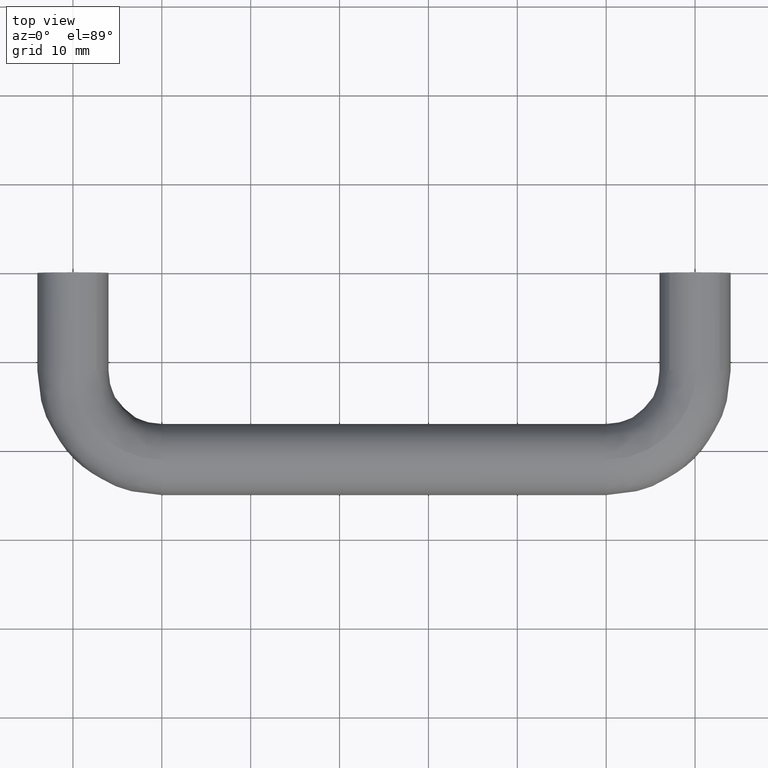
[diagram: clean part render]
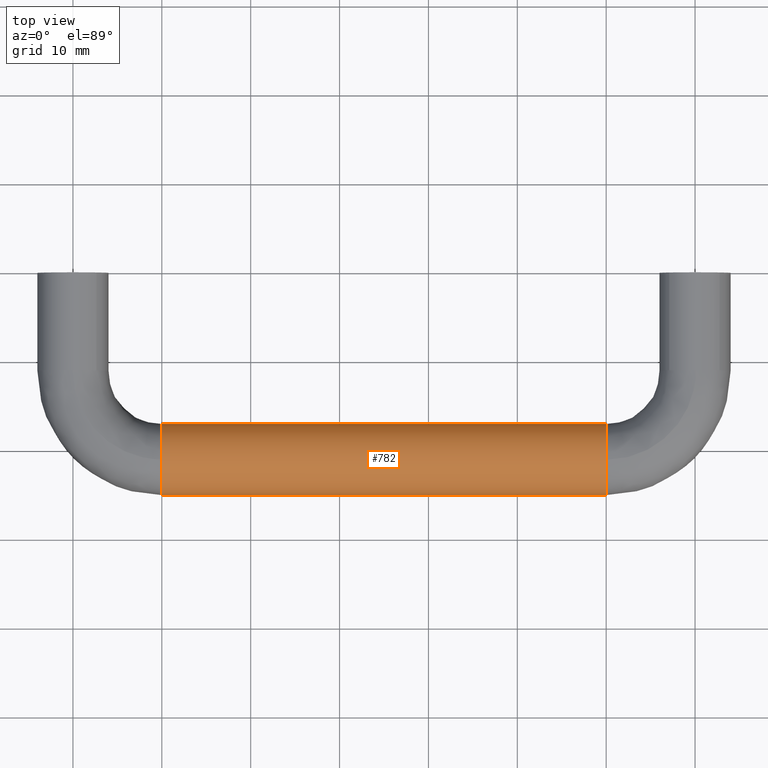
[diagram: same view with one face highlighted and labeled with its STEP entity id]
A machine part, top view. The second image highlights one B-rep face of the part: STEP entity #782.
In plain terms, the highlighted face is a freeform B-spline surface patch.
Its self-contained STEP definition (entity closure, byte-faithful):
#620=CARTESIAN_POINT('',(8.749999999407832,-18.085145242384502,-2.739273944315588));
#621=CARTESIAN_POINT('',(8.749999999407830,-15.498302470239516,0.013379172849753));
#622=CARTESIAN_POINT('',(8.749999999407830,-18.098502515950852,2.753418302775015));
#623=CARTESIAN_POINT('',(8.749999999407830,-20.851920818725869,5.654915786824165));
#624=CARTESIAN_POINT('',(8.749999999407830,-23.753418302775010,2.901497484049150));
#625=CARTESIAN_POINT('',(8.749999999407830,-26.654915786824155,0.148079181274134));
#626=CARTESIAN_POINT('',(8.749999999407830,-23.901497484049148,-2.753418302775015));
#627=CARTESIAN_POINT('',(61.281250000268088,-18.085145242384492,-2.739273944315588));
#628=CARTESIAN_POINT('',(61.281250000268074,-15.498302470239500,0.013379172849753));
#629=CARTESIAN_POINT('',(61.281250000268081,-18.098502515950852,2.753418302775015));
#630=CARTESIAN_POINT('',(61.281250000268081,-20.851920818725855,5.654915786824165));
#631=CARTESIAN_POINT('',(61.281250000268081,-23.753418302775010,2.901497484049150));
#632=CARTESIAN_POINT('',(61.281250000268081,-26.654915786824155,0.148079181274134));
#633=CARTESIAN_POINT('',(61.281250000268081,-23.901497484049141,-2.753418302775015));
#641=(BOUNDED_SURFACE()B_SPLINE_SURFACE(2,1,((#620,#627),(#621,#628),(#622,#629),(#623,#630),(#624,#631),(#625,#632),(#626,#633)),.UNSPECIFIED.,.F.,.F.,.U.)B_SPLINE_SURFACE_WITH_KNOTS((3,2,2,3),(2,2),(0.0,6.362320318050738,12.989737316020260,19.617154313989779),(0.0,52.531250000860247),.UNSPECIFIED.)GEOMETRIC_REPRESENTATION_ITEM()RATIONAL_B_SPLINE_SURFACE(((0.977505800795127,0.977505800795127),(0.718822509939086,0.718822509939086),(1.0,1.0),(0.707106781186548,0.707106781186548),(1.0,1.0),(0.707106781186548,0.707106781186548),(1.0,1.0)))REPRESENTATION_ITEM('')SURFACE());
#642=CARTESIAN_POINT('',(59.999995410626042,-18.085144373023830,-2.739273019229506));
#643=VERTEX_POINT('',#642);
#644=CARTESIAN_POINT('',(60.0,-17.0,0.0));
#645=VERTEX_POINT('',#644);
#646=CARTESIAN_POINT('',(59.999995410626028,-18.085144373023823,-2.739273019229505));
#647=CARTESIAN_POINT('',(59.999998084996584,-17.000000000000025,-1.584572790525597));
#648=CARTESIAN_POINT('',(60.0,-17.0,0.0));
#656=(BOUNDED_CURVE()B_SPLINE_CURVE(2,(#646,#647,#648),.UNSPECIFIED.,.F.,.U.)B_SPLINE_CURVE_WITH_KNOTS((3,3),(0.379684538877428,0.500000000000000),.UNSPECIFIED.)CURVE()GEOMETRIC_REPRESENTATION_ITEM()RATIONAL_B_SPLINE_CURVE((0.853759071032117,0.859041669275140,1.0))REPRESENTATION_ITEM(''));
#657=EDGE_CURVE('',#643,#645,#656,.T.);
#658=ORIENTED_EDGE('',*,*,#657,.F.);
#659=CARTESIAN_POINT('',(10.000003123664021,-18.085144822978489,-2.739273498026444));
#660=VERTEX_POINT('',#659);
#661=CARTESIAN_POINT('',(10.000003123664021,-18.085144822978489,-2.739273498026444));
#662=CARTESIAN_POINT('',(59.999995410626042,-18.085144373023830,-2.739273019229506));
#663=QUASI_UNIFORM_CURVE('',1,(#661,#662),.UNSPECIFIED.,.F.,.U.);
#664=EDGE_CURVE('',#660,#643,#663,.T.);
#665=ORIENTED_EDGE('',*,*,#664,.F.);
#666=CARTESIAN_POINT('',(10.0,-17.0,0.0));
#667=VERTEX_POINT('',#666);
#668=CARTESIAN_POINT('',(10.000003123664017,-18.085144822978492,-2.739273498026444));
#669=CARTESIAN_POINT('',(10.000001319486849,-17.0,-1.584572816330424));
#670=CARTESIAN_POINT('',(10.0,-17.0,0.0));
#678=(BOUNDED_CURVE()B_SPLINE_CURVE(2,(#668,#669,#670),.UNSPECIFIED.,.F.,.U.)B_SPLINE_CURVE_WITH_KNOTS((3,3),(0.379684537194316,0.500000000000000),.UNSPECIFIED.)CURVE()GEOMETRIC_REPRESENTATION_ITEM()RATIONAL_B_SPLINE_CURVE((0.853759070884319,0.859041667303252,1.0))REPRESENTATION_ITEM(''));
#679=EDGE_CURVE('',#660,#667,#678,.T.);
#680=ORIENTED_EDGE('',*,*,#679,.T.);
#681=CARTESIAN_POINT('',(9.999999999428301,-21.050264161945130,3.999684176784955));
#682=VERTEX_POINT('',#681);
#683=CARTESIAN_POINT('',(10.0,-17.0,0.0));
#684=CARTESIAN_POINT('',(10.000000000000002,-17.000000000000004,4.000000000000000));
#685=CARTESIAN_POINT('',(10.0,-21.0,4.0));
#686=CARTESIAN_POINT('',(10.0,-21.025133074379568,4.000000000000000));
#687=CARTESIAN_POINT('',(9.999999999428301,-21.050264161945130,3.999684176784955));
#695=(BOUNDED_CURVE()B_SPLINE_CURVE(2,(#683,#684,#685,#686,#687),.UNSPECIFIED.,.F.,.U.)B_SPLINE_CURVE_WITH_KNOTS((3,2,3),(0.500000000000000,0.750000000000000,0.752215704290359),.UNSPECIFIED.)CURVE()GEOMETRIC_REPRESENTATION_ITEM()RATIONAL_B_SPLINE_CURVE((1.0,0.707106781186548,1.0,0.997404140953831,0.994854295155869))REPRESENTATION_ITEM(''));
#696=EDGE_CURVE('',#667,#682,#695,.T.);
#697=ORIENTED_EDGE('',*,*,#696,.T.);
#698=CARTESIAN_POINT('',(10.0,-25.0,0.0));
#699=VERTEX_POINT('',#698);
#700=CARTESIAN_POINT('',(9.999999999428301,-21.050264161945126,3.999684176784955));
#701=CARTESIAN_POINT('',(9.999999999999998,-24.999999999999993,3.950047714865288));
#702=CARTESIAN_POINT('',(10.0,-25.0,0.0));
#710=(BOUNDED_CURVE()B_SPLINE_CURVE(2,(#700,#701,#702),.UNSPECIFIED.,.F.,.U.)B_SPLINE_CURVE_WITH_KNOTS((3,3),(0.752215704290360,1.0),.UNSPECIFIED.)CURVE()GEOMETRIC_REPRESENTATION_ITEM()RATIONAL_B_SPLINE_CURVE((0.994854295155867,0.709702640232717,1.0))REPRESENTATION_ITEM(''));
#711=EDGE_CURVE('',#682,#699,#710,.T.);
#712=ORIENTED_EDGE('',*,*,#711,.T.);
#713=CARTESIAN_POINT('',(10.000002846891970,-23.901497828615462,-2.753417939677727));
#714=VERTEX_POINT('',#713);
#715=CARTESIAN_POINT('',(10.0,-25.0,0.0));
#716=CARTESIAN_POINT('',(10.000001155614772,-25.0,-1.595837603655317));
#717=CARTESIAN_POINT('',(10.000002846891972,-23.901497828615462,-2.753417939677727));
#725=(BOUNDED_CURVE()B_SPLINE_CURVE(2,(#715,#716,#717),.UNSPECIFIED.,.F.,.U.)B_SPLINE_CURVE_WITH_KNOTS((3,3),(0.0,0.121049488887875),.UNSPECIFIED.)CURVE()GEOMETRIC_REPRESENTATION_ITEM()RATIONAL_B_SPLINE_CURVE((1.0,0.858181702255628,0.853699664166494))REPRESENTATION_ITEM(''));
#726=EDGE_CURVE('',#699,#714,#725,.T.);
#727=ORIENTED_EDGE('',*,*,#726,.T.);
#728=CARTESIAN_POINT('',(59.999995540924871,-23.901497832919951,-2.753417935140964));
#729=VERTEX_POINT('',#728);
#730=CARTESIAN_POINT('',(10.000002846891970,-23.901497828615462,-2.753417939677727));
#731=CARTESIAN_POINT('',(59.999995540924871,-23.901497832919951,-2.753417935140964));
#732=QUASI_UNIFORM_CURVE('',1,(#730,#731),.UNSPECIFIED.,.F.,.U.);
#733=EDGE_CURVE('',#714,#729,#732,.T.);
#734=ORIENTED_EDGE('',*,*,#733,.T.);
#735=CARTESIAN_POINT('',(60.0,-25.0,0.0));
#736=VERTEX_POINT('',#735);
#737=CARTESIAN_POINT('',(60.0,-25.0,0.0));
#738=CARTESIAN_POINT('',(59.999998165934080,-25.000000000000018,-1.595837596406055));
#739=CARTESIAN_POINT('',(59.999995540924878,-23.901497832919951,-2.753417935140964));
#747=(BOUNDED_CURVE()B_SPLINE_CURVE(2,(#737,#738,#739),.UNSPECIFIED.,.F.,.U.)B_SPLINE_CURVE_WITH_KNOTS((3,3),(0.0,0.121049488416020),.UNSPECIFIED.)CURVE()GEOMETRIC_REPRESENTATION_ITEM()RATIONAL_B_SPLINE_CURVE((1.0,0.858181702808441,0.853699664201436))REPRESENTATION_ITEM(''));
#748=EDGE_CURVE('',#736,#729,#747,.T.);
#749=ORIENTED_EDGE('',*,*,#748,.F.);
#750=CARTESIAN_POINT('',(60.000000000247098,-21.100520383177319,3.998736757097906));
#751=VERTEX_POINT('',#750);
#752=CARTESIAN_POINT('',(60.000000000247098,-21.100520383177322,3.998736757097907));
#753=CARTESIAN_POINT('',(59.999999999999986,-24.999999999999989,3.900711501982625));
#754=CARTESIAN_POINT('',(60.0,-25.0,0.0));
#762=(BOUNDED_CURVE()B_SPLINE_CURVE(2,(#752,#753,#754),.UNSPECIFIED.,.F.,.U.)B_SPLINE_CURVE_WITH_KNOTS((3,3),(0.754420108353063,1.0),.UNSPECIFIED.)CURVE()GEOMETRIC_REPRESENTATION_ITEM()RATIONAL_B_SPLINE_CURVE((0.989826157403852,0.712285260238679,1.0))REPRESENTATION_ITEM(''));
#763=EDGE_CURVE('',#751,#736,#762,.T.);
#764=ORIENTED_EDGE('',*,*,#763,.F.);
#765=CARTESIAN_POINT('',(60.0,-17.0,0.0));
#766=CARTESIAN_POINT('',(60.0,-17.000000000000004,4.000000000000000));
#767=CARTESIAN_POINT('',(60.0,-21.0,4.0));
#768=CARTESIAN_POINT('',(60.000000000000007,-21.050268129898161,4.0));
#769=CARTESIAN_POINT('',(60.000000000247098,-21.100520383177322,3.998736757097906));
#777=(BOUNDED_CURVE()B_SPLINE_CURVE(2,(#765,#766,#767,#768,#769),.UNSPECIFIED.,.F.,.U.)B_SPLINE_CURVE_WITH_KNOTS((3,2,3),(0.500000000000000,0.750000000000000,0.754420108353064),.UNSPECIFIED.)CURVE()GEOMETRIC_REPRESENTATION_ITEM()RATIONAL_B_SPLINE_CURVE((1.0,0.707106781186548,1.0,0.994821520947867,0.989826157403851))REPRESENTATION_ITEM(''));
#778=EDGE_CURVE('',#645,#751,#777,.T.);
#779=ORIENTED_EDGE('',*,*,#778,.F.);
#780=EDGE_LOOP('',(#658,#665,#680,#697,#712,#727,#734,#749,#764,#779));
#781=FACE_OUTER_BOUND('',#780,.T.);
#782=ADVANCED_FACE('',(#781),#641,.T.);